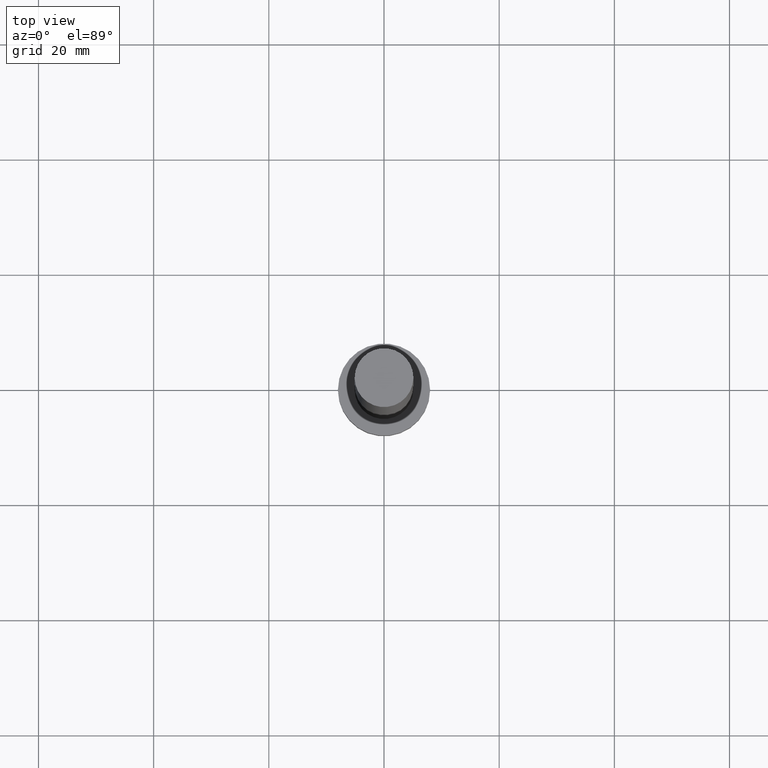
[diagram: clean part render]
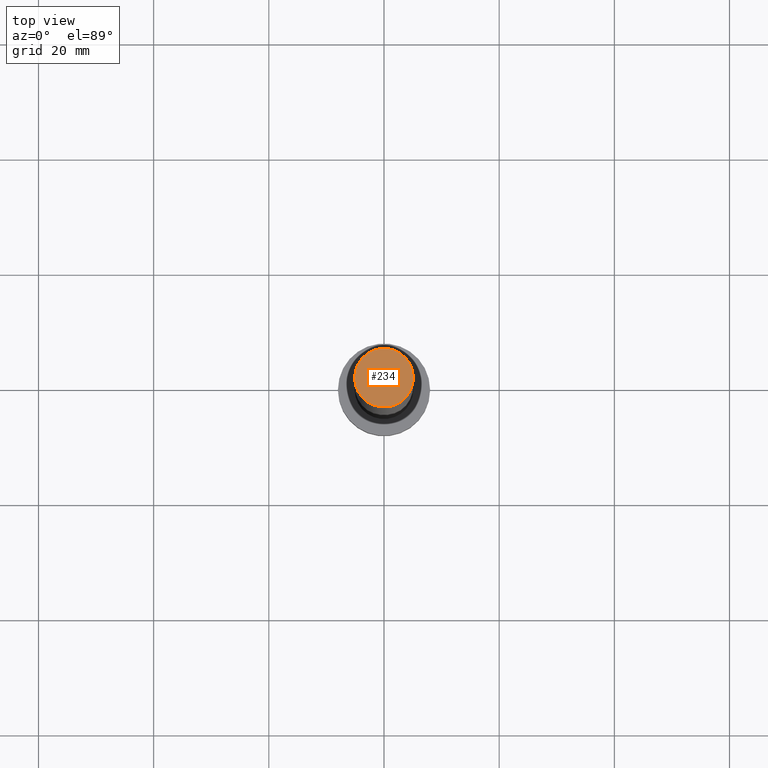
[diagram: same view with one face highlighted and labeled with its STEP entity id]
A machine part, top view. The second image highlights one B-rep face of the part: STEP entity #234.
In plain terms, the highlighted planar face has unit normal (0, 0, 1).
Its self-contained STEP definition (entity closure, byte-faithful):
#15 = VERTEX_POINT ( 'NONE', #106 ) ;
#16 = EDGE_LOOP ( 'NONE', ( #86, #50 ) ) ;
#21 = CIRCLE ( 'NONE', #84, 5.100000000000001421 ) ;
#40 = DIRECTION ( 'NONE',  ( 1.000000000000000000, 0.000000000000000000, 0.000000000000000000 ) ) ;
#43 = DIRECTION ( 'NONE',  ( 1.000000000000000000, 0.000000000000000000, -0.000000000000000000 ) ) ;
#50 = ORIENTED_EDGE ( 'NONE', *, *, #209, .T. ) ;
#64 = DIRECTION ( 'NONE',  ( 0.000000000000000000, 0.000000000000000000, 1.000000000000000000 ) ) ;
#84 = AXIS2_PLACEMENT_3D ( 'NONE', #98, #64, #97 ) ;
#86 = ORIENTED_EDGE ( 'NONE', *, *, #230, .T. ) ;
#92 = VERTEX_POINT ( 'NONE', #248 ) ;
#97 = DIRECTION ( 'NONE',  ( 1.000000000000000000, 0.000000000000000000, 0.000000000000000000 ) ) ;
#98 = CARTESIAN_POINT ( 'NONE',  ( 0.000000000000000000, 0.000000000000000000, 125.0000000000000000 ) ) ;
#106 = CARTESIAN_POINT ( 'NONE',  ( -5.100000000000001421, 0.000000000000000000, 125.0000000000000000 ) ) ;
#108 = CIRCLE ( 'NONE', #192, 5.100000000000001421 ) ;
#116 = CARTESIAN_POINT ( 'NONE',  ( 0.000000000000000000, 0.000000000000000000, 125.0000000000000000 ) ) ;
#134 = DIRECTION ( 'NONE',  ( 0.000000000000000000, 0.000000000000000000, 1.000000000000000000 ) ) ;
#172 = DIRECTION ( 'NONE',  ( 0.000000000000000000, 0.000000000000000000, 1.000000000000000000 ) ) ;
#174 = FACE_OUTER_BOUND ( 'NONE', #16, .T. ) ;
#178 = AXIS2_PLACEMENT_3D ( 'NONE', #194, #172, #43 ) ;
#192 = AXIS2_PLACEMENT_3D ( 'NONE', #116, #134, #40 ) ;
#194 = CARTESIAN_POINT ( 'NONE',  ( 0.000000000000000000, 0.000000000000000000, 125.0000000000000000 ) ) ;
#209 = EDGE_CURVE ( 'NONE', #92, #15, #108, .T. ) ;
#230 = EDGE_CURVE ( 'NONE', #15, #92, #21, .T. ) ;
#234 = ADVANCED_FACE ( 'NONE', ( #174 ), #255, .T. ) ;
#248 = CARTESIAN_POINT ( 'NONE',  ( 5.100000000000001421, 6.245698675651502811E-16, 125.0000000000000000 ) ) ;
#255 = PLANE ( 'NONE',  #178 ) ;